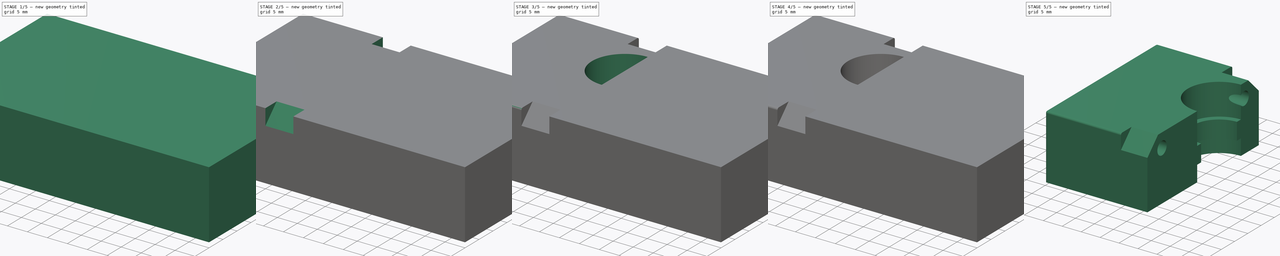
[diagram: build sequence overview — one tinted view per stage of 5, left to right]
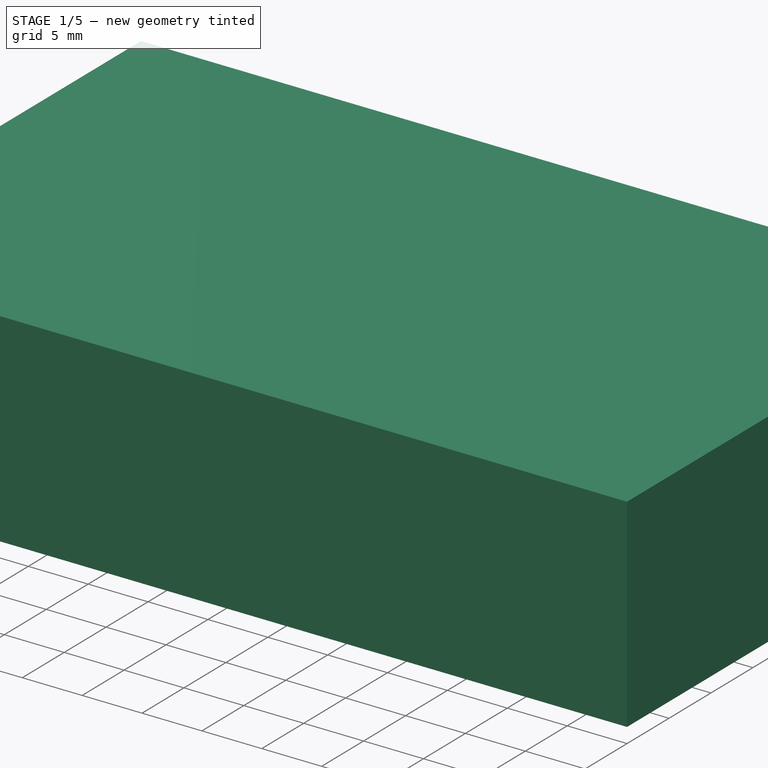
[diagram: stage 1 of 5 — iso view after this stage's code; geometry added in this stage tinted green]
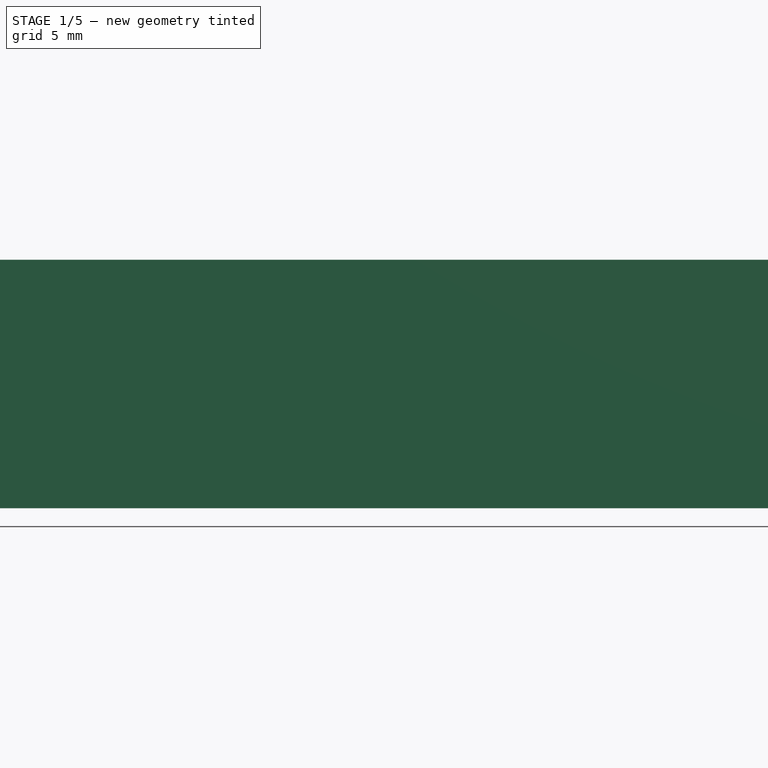
[diagram: stage 1 of 5 — front view after this stage's code; geometry added in this stage tinted green]
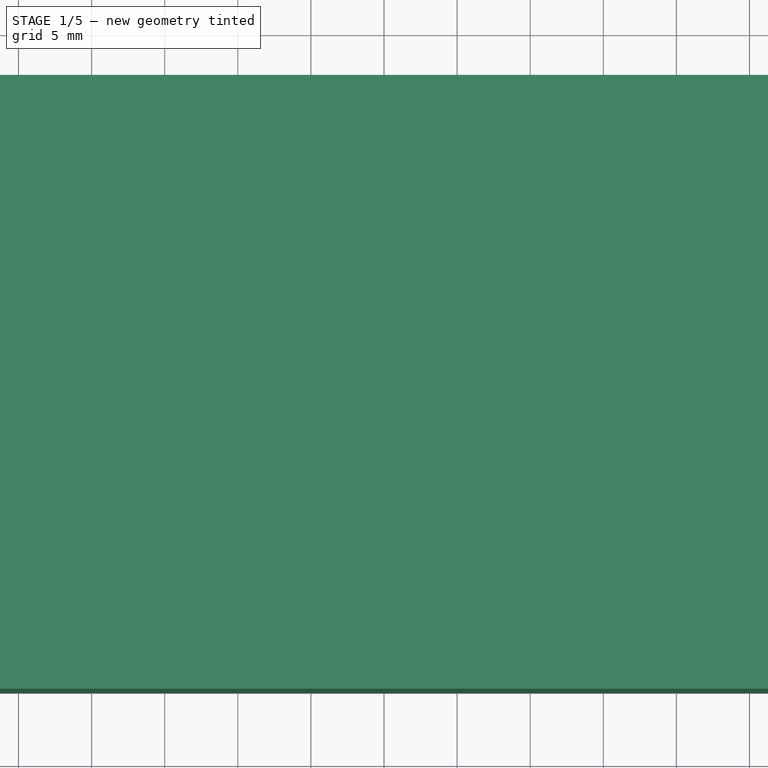
[diagram: stage 1 of 5 — top view after this stage's code; geometry added in this stage tinted green]
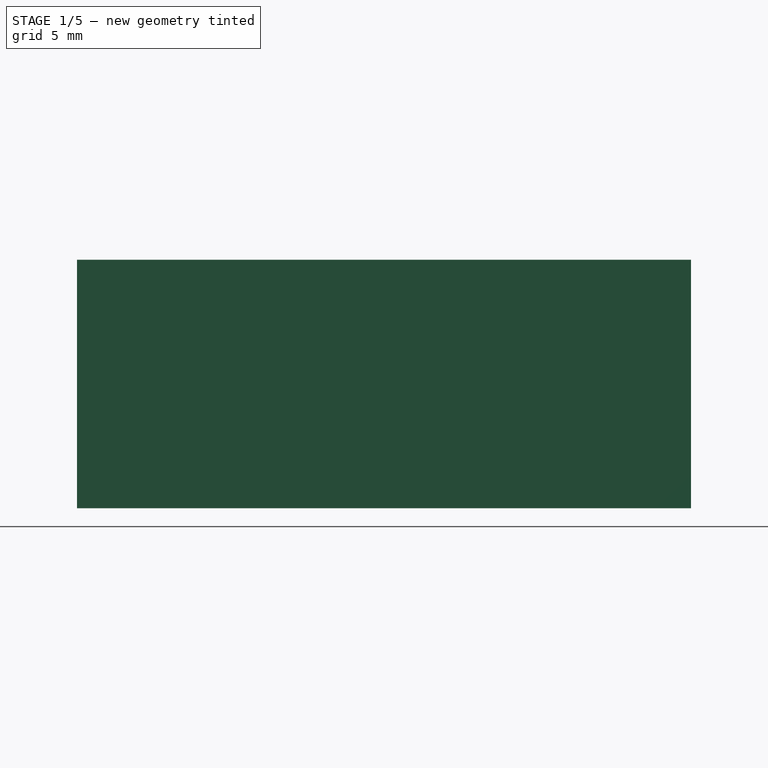
[diagram: stage 1 of 5 — right view after this stage's code; geometry added in this stage tinted green]
FCSTD DOCUMENT  (FreeCAD 0.17R13541 (Git))
Label: E3Dv6forGEEETech_Part01
License: Other
LicenseURL: https://www.gnu.org/licenses/gpl-2.0.html
objects: Part::Feature×15, Sketcher::SketchObject×10, PartDesign::Pocket×9, PartDesign::FeatureBase×3, PartDesign::Body×3, Part::Box×2, Part::MultiFuse×2, Part::Fillet×1, Part::FeaturePython×1, Part::Cut×1
note: 56 computed .brp shape members not serialized (recipe doc carries the construction recipe); baked Part::Feature solids carry a one-line shape summary decoded from their .brp

FEATURE [Part::Box] Box  label="StartingCube"
  AttacherType = Attacher::AttachEngine3D
  Height = 17
  Length = 70
  Width = 42
FEATURE [PartDesign::FeatureBase] BaseFeature
  BaseFeature = -> Box
FEATURE [PartDesign::Body] Body001  label="FilletBody"
  BaseFeature = -> Fillet
  Group = -> [BaseFeature001,Sketch007,Pocket006,Sketch008,Pocket007,Sketch009,Sketch010,Pocket008]
  Origin = -> Origin001
  Tip = -> Pocket008
FEATURE [Part::Box] Box001  label="Part Divider Cube"
  AttacherType = Attacher::AttachEngine3D
  Height = 17
  Length = 43
  Placement = pos=(27,0,0) rot=(0,0,1;0rad)
  Width = 42
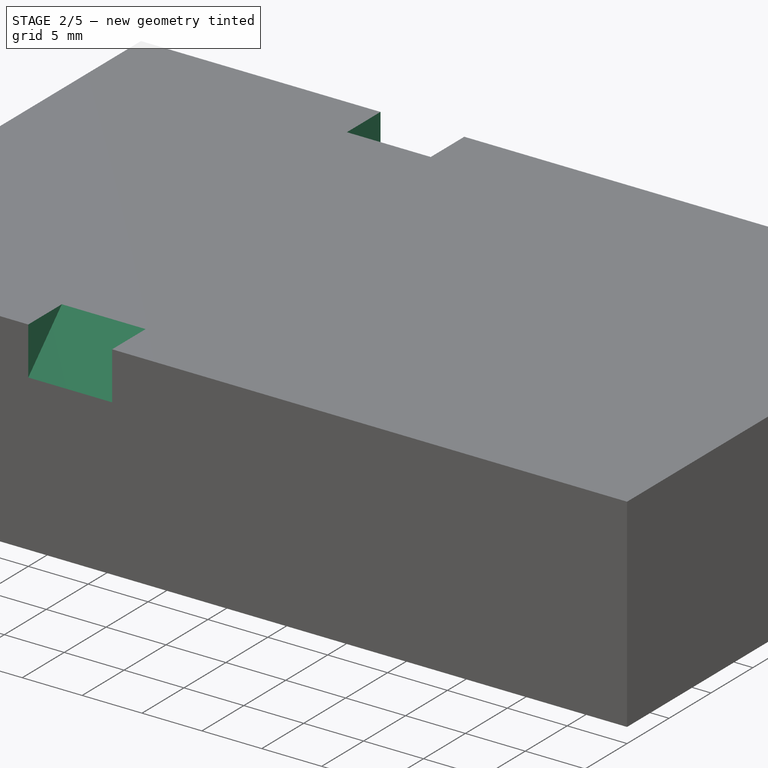
[diagram: stage 2 of 5 — iso view after this stage's code; geometry added in this stage tinted green]
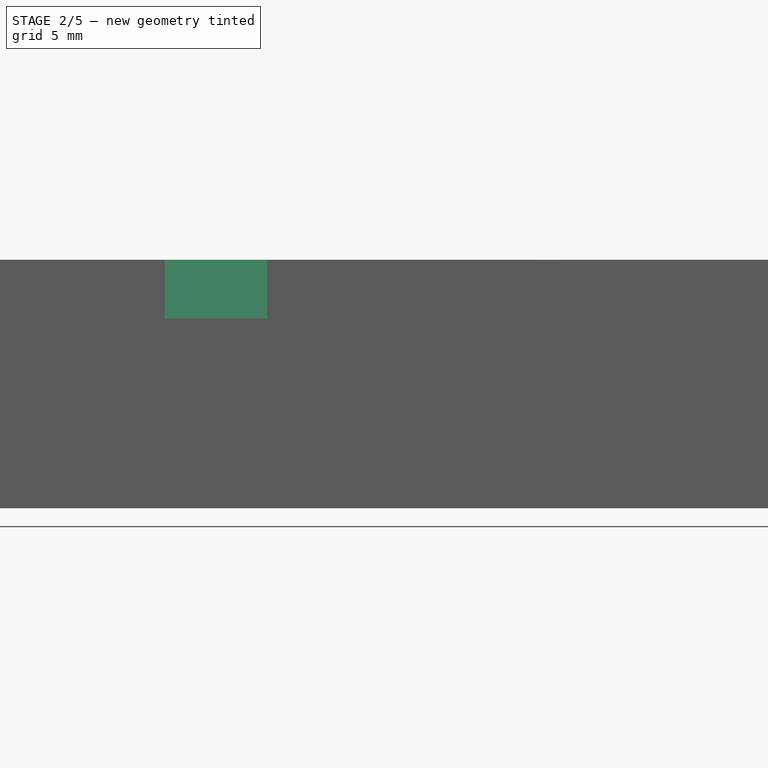
[diagram: stage 2 of 5 — front view after this stage's code; geometry added in this stage tinted green]
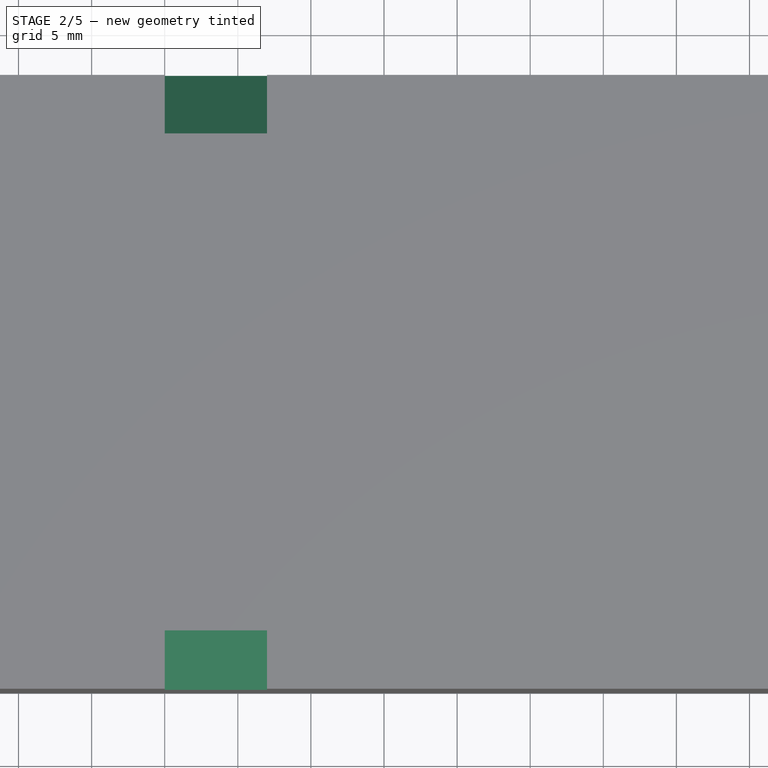
[diagram: stage 2 of 5 — top view after this stage's code; geometry added in this stage tinted green]
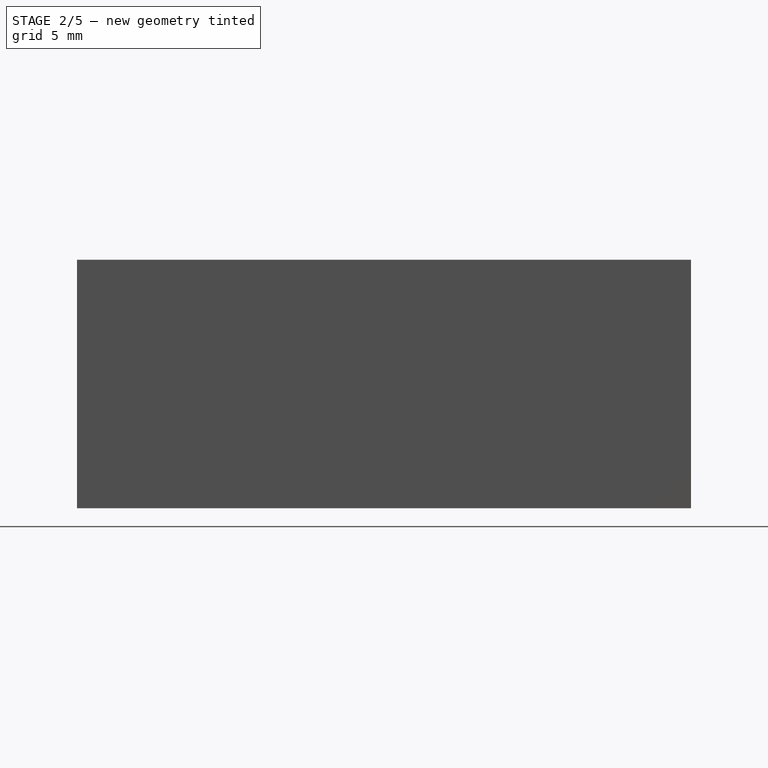
[diagram: stage 2 of 5 — right view after this stage's code; geometry added in this stage tinted green]
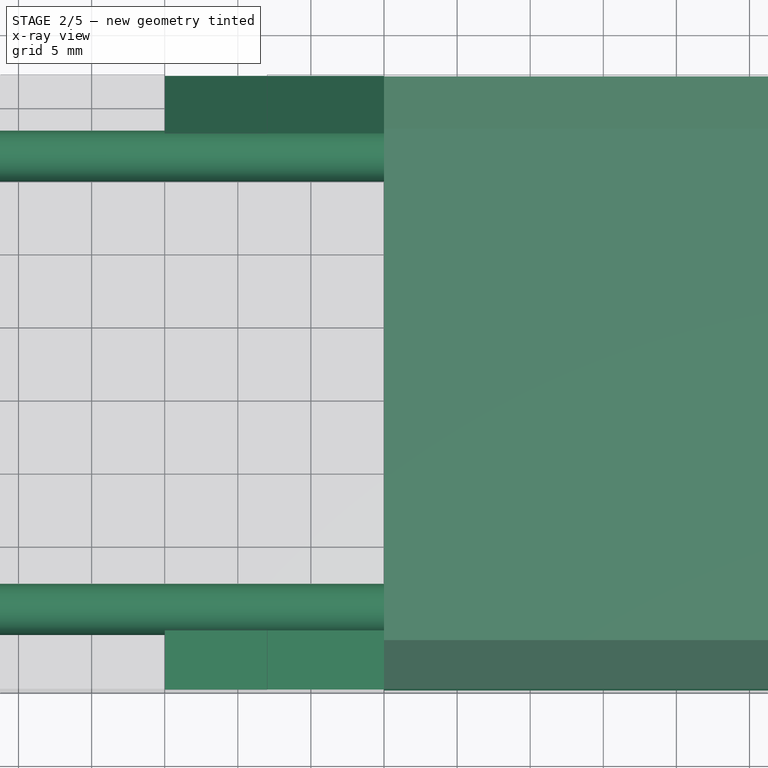
[diagram: stage 2 of 5 — x-ray composite at the top view; earlier geometry ghosted, this stage's added geometry solid]
FEATURE [Sketcher::SketchObject] Sketch  label="Main Screws"
  ExternalGeometry = -> [BaseFeature]
  MapMode = 5
  Placement = pos=(70,0,0) rot=(0.57735,0.57735,0.57735;2.0944rad)
  Support = -> [BaseFeature]
  sketch-geometry (5):
    g0: LineSegment [constr] StartX=5.5 StartY=17 StartZ=0 EndX=5.5 EndY=0 EndZ=0
    g1: LineSegment [constr] StartX=36.5 StartY=17 StartZ=0 EndX=36.5 EndY=0 EndZ=0
    g2: LineSegment [constr] StartX=0 StartY=13.25 StartZ=0 EndX=42 EndY=13.25 EndZ=0
    g3: Circle CenterX=5.5 CenterY=13.25 CenterZ=0 NormalX=0 NormalY=0 NormalZ=1 AngleXU=0 Radius=1.75
    g4: Circle CenterX=36.5 CenterY=13.25 CenterZ=0 NormalX=0 NormalY=0 NormalZ=1 AngleXU=0 Radius=1.75
  constraints (18):
    c: Horizontal(g2)
    c: PointOnObject(g0,g-1)
    c: PointOnObject(g1,g-1)
    c: PointOnObject(g0,g-3)
    c: PointOnObject(g1,g-3)
    c: Vertical(g0)
    c: Vertical(g1)
    c: PointOnObject(g2,g-4)
    c: PointOnObject(g2,g-6)
    c: DistanceY(g-1,g2) = 13.25
    c: DistanceX(g-1,g0) = 5.5
    c: DistanceX(g1,g-6) = 5.5
    c: PointOnObject(g3,g0)
    c: PointOnObject(g3,g2)
    c: PointOnObject(g4,g2)
    c: PointOnObject(g4,g1)
    c: Radius(g3) = 1.75
    c: Radius(g4) = 1.75
FEATURE [Sketcher::SketchObject] Sketch001  label="Motor Corners"
  ExternalGeometry = -> [BaseFeature]
  MapMode = 5
  Placement = pos=(70,0,0) rot=(0.57735,0.57735,0.57735;2.0944rad)
  Support = -> [BaseFeature]
  sketch-geometry (6):
    g0: LineSegment StartX=4 StartY=17 StartZ=0 EndX=0 EndY=17 EndZ=0
    g1: LineSegment StartX=0 StartY=17 StartZ=0 EndX=0 EndY=13 EndZ=0
    g2: LineSegment StartX=0 StartY=13 StartZ=0 EndX=4 EndY=17 EndZ=0
    g3: LineSegment StartX=38 StartY=17 StartZ=0 EndX=42 EndY=17 EndZ=0
    g4: LineSegment StartX=42 StartY=17 StartZ=0 EndX=42 EndY=13 EndZ=0
    g5: LineSegment StartX=42 StartY=13 StartZ=0 EndX=38 EndY=17 EndZ=0
  constraints (16):
    c: Coincident(g0,g1)
    c: Coincident(g1,g2)
    c: Coincident(g2,g0)
    c: Coincident(g3,g4)
    c: Coincident(g4,g5)
    c: Coincident(g5,g3)
    c: Coincident(g0,g-6)
    c: Coincident(g3,g-6)
    c: PointOnObject(g1,g-3)
    c: PointOnObject(g0,g-6)
    c: PointOnObject(g3,g-6)
    c: PointOnObject(g4,g-5)
    c: DistanceY(g1,g1) = 4
    c: DistanceX(g0,g0) = 4
    c: Equal(g1,g4)
    c: Equal(g0,g3)
FEATURE [PartDesign::Pocket] Pocket  label="MainScrewsPocket"
  BaseFeature = -> BaseFeature
  Length = 5
  Length2 = 100
  Profile = -> Sketch
  Type = 1
FEATURE [PartDesign::Pocket] Pocket001  label="MotorCornersPocket"
  BaseFeature = -> Pocket
  Length = 50
  Length2 = 100
  Profile = -> Sketch001
  Type = 0
FEATURE [Sketcher::SketchObject] Sketch002  label="Motor Hole"
  ExternalGeometry = -> [Pocket001]
  MapMode = 5
  Placement = pos=(70,0,0) rot=(0.57735,0.57735,0.57735;2.0944rad)
  Support = -> [Pocket001]
  sketch-geometry (10):
    g0: LineSegment StartX=4 StartY=17 StartZ=0 EndX=0 EndY=13 EndZ=0
    g1: LineSegment StartX=0 StartY=13 StartZ=0 EndX=0 EndY=10.5 EndZ=0
    g2: LineSegment StartX=0 StartY=10.5 StartZ=0 EndX=3.5 EndY=7 EndZ=0
    g3: LineSegment StartX=3.5 StartY=7 StartZ=0 EndX=38.5 EndY=7 EndZ=0
    g4: LineSegment StartX=38.5 StartY=7 StartZ=0 EndX=42 EndY=10.5 EndZ=0
    g5: LineSegment StartX=42 StartY=10.5 StartZ=0 EndX=42 EndY=13 EndZ=0
    g6: LineSegment StartX=42 StartY=13 StartZ=0 EndX=38 EndY=17 EndZ=0
    g7: LineSegment StartX=38 StartY=17 StartZ=0 EndX=4 EndY=17 EndZ=0
    g8: LineSegment [constr] StartX=0 StartY=7 StartZ=0 EndX=3.5 EndY=7 EndZ=0
    g9: LineSegment [constr] StartX=38.5 StartY=7 StartZ=0 EndX=42 EndY=7 EndZ=0
  constraints (25):
    c: Coincident(g0,g1)
    c: Coincident(g1,g2)
    c: Coincident(g2,g3)
    c: Horizontal(g3)
    c: Coincident(g3,g4)
    c: Coincident(g4,g5)
    c: Coincident(g5,g6)
    c: Coincident(g6,g7)
    c: Horizontal(g7)
    c: Coincident(g0,g-5)
    c: Coincident(g6,g-7)
    c: Coincident(g5,g-7)
    c: PointOnObject(g4,g-6)
    c: PointOnObject(g1,g-5)
    c: PointOnObject(g8,g-5)
    c: Horizontal(g8)
    c: DistanceX(g8,g8) = 3.5
    c: DistanceY(g8,g1) = 3.5
    c: Coincident(g2,g8)
    c: Horizontal(g9)
    c: PointOnObject(g9,g-6)
    c: Coincident(g3,g9)
    c: DistanceX(g9,g9) = 3.5
    c: DistanceY(g9,g4) = 3.5
    c: DistanceY(g2,g0) = 10
FEATURE [PartDesign::Pocket] Pocket002  label="MotorPocket"
  BaseFeature = -> Pocket001
  Length = 35
  Length2 = 100
  Profile = -> Sketch002
  Type = 0
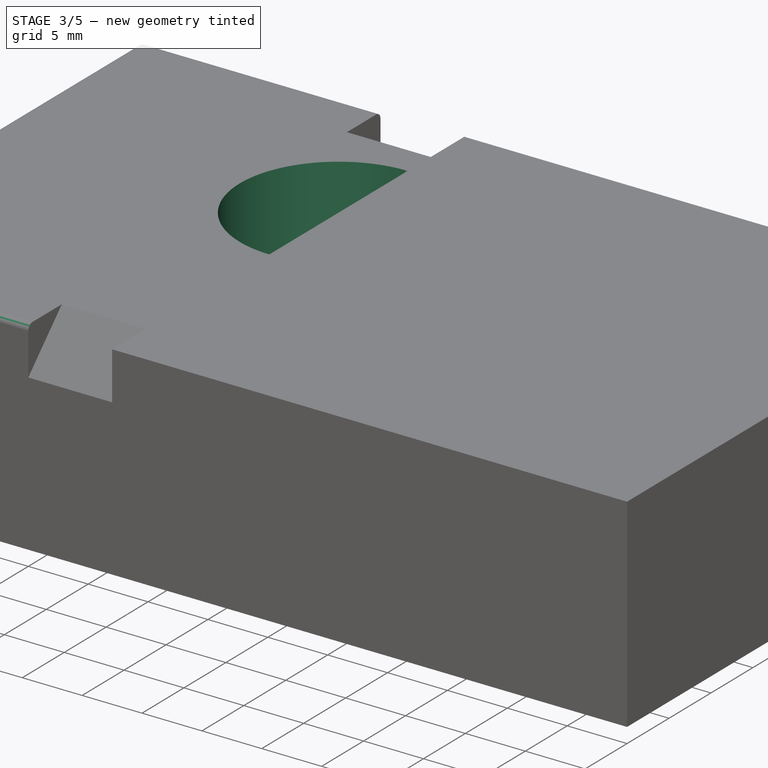
[diagram: stage 3 of 5 — iso view after this stage's code; geometry added in this stage tinted green]
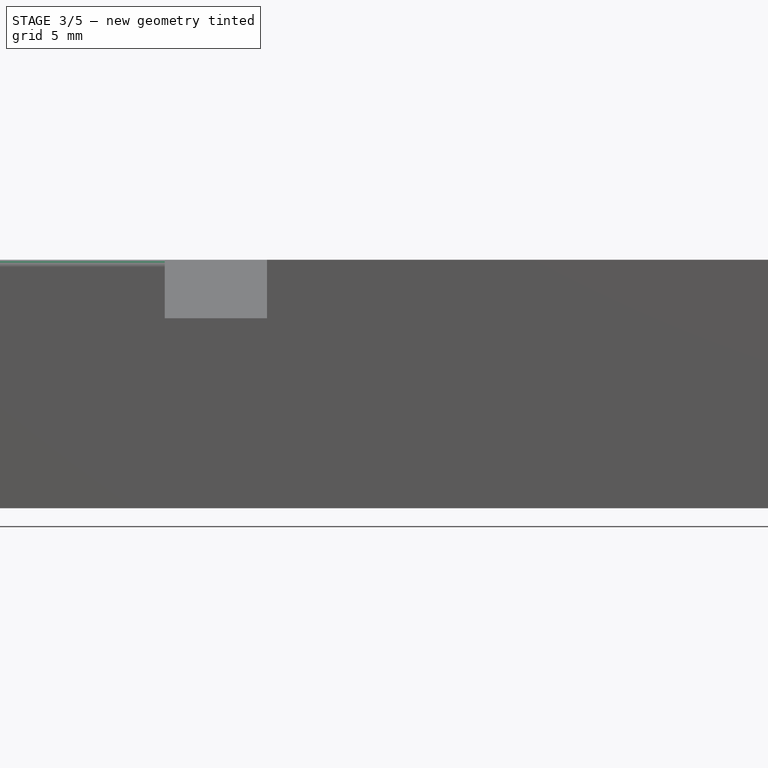
[diagram: stage 3 of 5 — front view after this stage's code; geometry added in this stage tinted green]
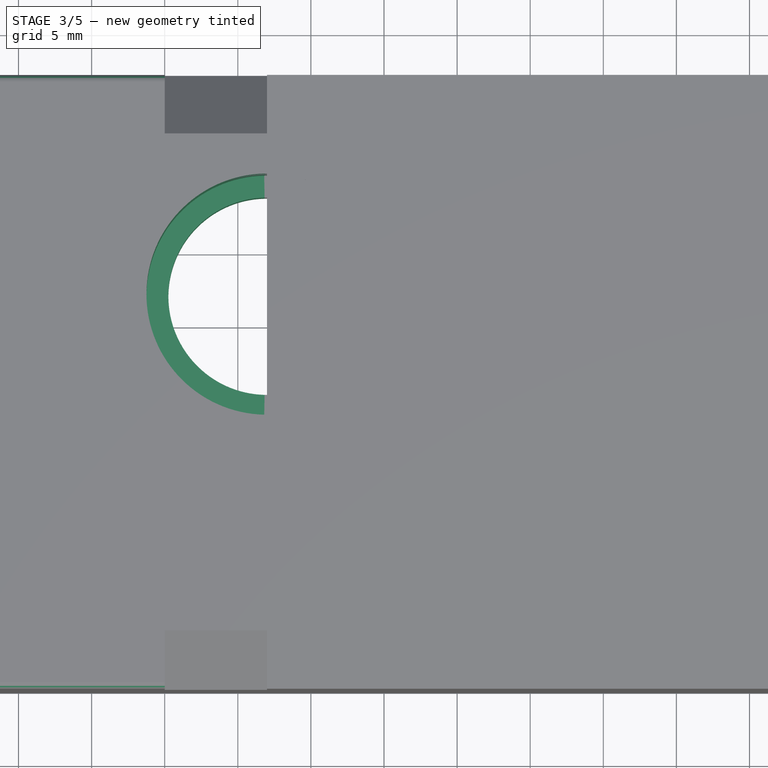
[diagram: stage 3 of 5 — top view after this stage's code; geometry added in this stage tinted green]
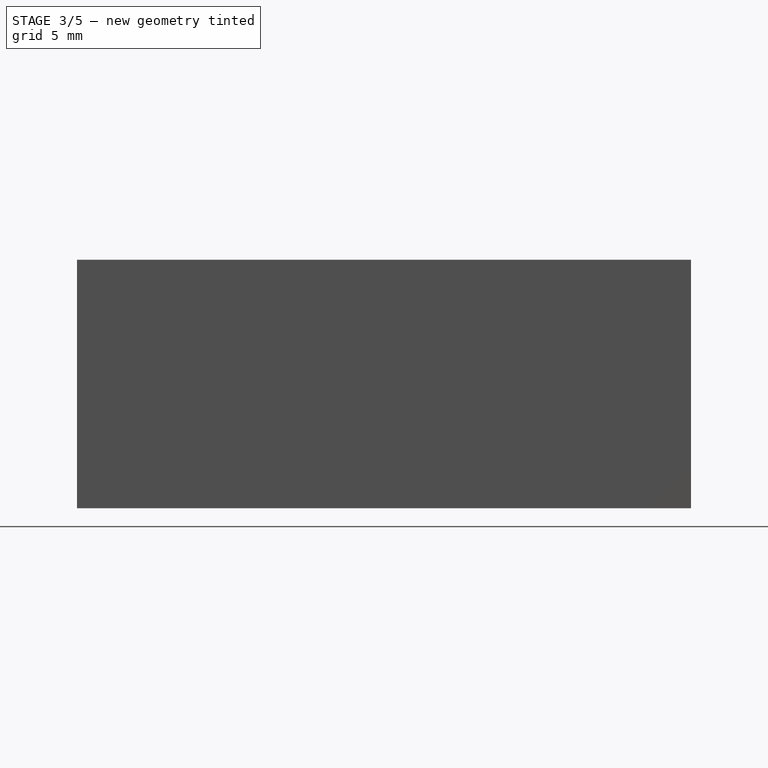
[diagram: stage 3 of 5 — right view after this stage's code; geometry added in this stage tinted green]
FEATURE [Sketcher::SketchObject] Sketch003  label="Center Hotend Hole"
  ExternalGeometry = -> [Pocket002]
  MapMode = 5
  Placement = pos=(0,0,17) rot=(0,0,1;0rad)
  Support = -> [Pocket002]
  sketch-geometry (3):
    g0: LineSegment [constr] StartX=27 StartY=42 StartZ=0 EndX=27 EndY=0 EndZ=0
    g1: LineSegment [constr] StartX=0 StartY=27 StartZ=0 EndX=35 EndY=27 EndZ=0
    g2: Circle CenterX=27 CenterY=27 CenterZ=0 NormalX=0 NormalY=0 NormalZ=1 AngleXU=0 Radius=6.75
  constraints (11):
    c: PointOnObject(g0,g-3)
    c: PointOnObject(g0,g-6)
    c: Vertical(g0)
    c: DistanceX(g-4,g0) = 27
    c: PointOnObject(g1,g-4)
    c: PointOnObject(g1,g-5)
    c: Horizontal(g1)
    c: DistanceY(g1,g-4) = 15
    c: PointOnObject(g2,g0)
    c: PointOnObject(g2,g1)
    c: Radius(g2) = 6.75
FEATURE [PartDesign::Pocket] Pocket003  label="CenterHotendHolePocket"
  BaseFeature = -> Pocket002
  Length = 5
  Length2 = 100
  Profile = -> Sketch003
  Type = 1
FEATURE [Sketcher::SketchObject] Sketch004  label="Top Hotend Hole"
  ExternalGeometry = -> [Pocket003]
  MapMode = 5
  Placement = pos=(0,0,17) rot=(0,0,1;0rad)
  Support = -> [Pocket003]
  sketch-geometry (3):
    g0: LineSegment [constr] StartX=27 StartY=42 StartZ=0 EndX=27 EndY=0 EndZ=0
    g1: LineSegment [constr] StartX=0 StartY=27 StartZ=0 EndX=35 EndY=27 EndZ=0
    g2: Circle CenterX=27 CenterY=27 CenterZ=0 NormalX=0 NormalY=0 NormalZ=1 AngleXU=0 Radius=8.25
  constraints (11):
    c: PointOnObject(g0,g-6)
    c: PointOnObject(g0,g-5)
    c: Vertical(g0)
    c: PointOnObject(g1,g-3)
    c: PointOnObject(g1,g-4)
    c: Horizontal(g1)
    c: DistanceX(g-6,g0) = 27
    c: DistanceY(g1,g-6) = 15
    c: PointOnObject(g2,g1)
    c: PointOnObject(g2,g0)
    c: Radius(g2) = 8.25
FEATURE [PartDesign::Pocket] Pocket004  label="TopHotendHolePocket"
  BaseFeature = -> Pocket003
  Length = 8.3
  Length2 = 100
  Profile = -> Sketch004
  Type = 0
FEATURE [Sketcher::SketchObject] Sketch005  label="Bottom Hotend Hole"
  ExternalGeometry = -> [Pocket004]
  MapMode = 5
  Placement = pos=(0,0,0) rot=(1,0,0;3.14159rad)
  Support = -> [Pocket004]
  sketch-geometry (3):
    g0: LineSegment [constr] StartX=27 StartY=-42 StartZ=0 EndX=27 EndY=0 EndZ=0
    g1: LineSegment [constr] StartX=55 StartY=-27 StartZ=0 EndX=0 EndY=-27 EndZ=0
    g2: Circle CenterX=27 CenterY=-27 CenterZ=0 NormalX=0 NormalY=0 NormalZ=1 AngleXU=0 Radius=8.25
  constraints (11):
    c: PointOnObject(g1,g-4)
    c: Horizontal(g1)
    c: Vertical(g0)
    c: DistanceX(g-4,g0) = 27
    c: DistanceY(g-4,g1) = 15
    c: PointOnObject(g2,g0)
    c: PointOnObject(g2,g1)
    c: Radius(g2) = 8.25
    c: PointOnObject(g0,g-3)
    c: PointOnObject(g1,g-5)
    c: PointOnObject(g0,g-6)
FEATURE [PartDesign::Pocket] Pocket005  label="BottomHotendHolePocket"
  BaseFeature = -> Pocket004
  Length = 4.2
  Length2 = 100
  Profile = -> Sketch005
  Type = 0
FEATURE [PartDesign::Body] Body  label="StartingBody"
  BaseFeature = -> Box
  Group = -> [BaseFeature,Sketch,Sketch001,Pocket,Pocket001,Sketch002,Pocket002,Sketch003,Pocket003,Sketch004,Pocket004,Sketch005,Pocket005]
  Origin = -> Origin
  Tip = -> Pocket005
FEATURE [Part::Fillet] Fillet  label="EdgeFillet"
  Base = -> Pocket005
  Edges = 5 edges r=0.5: [Edge1,Edge2,Edge4,Edge12,Edge14]
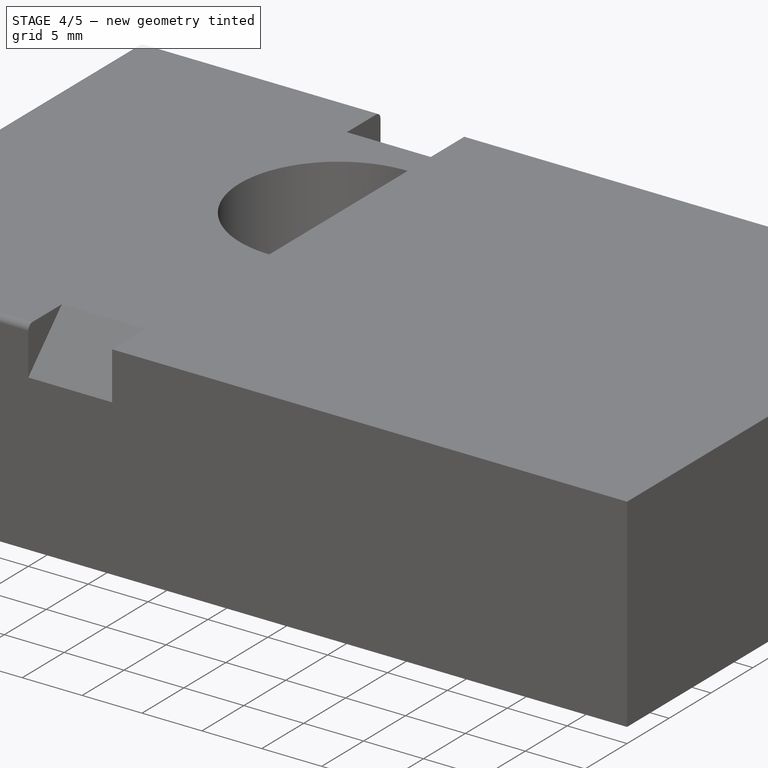
[diagram: stage 4 of 5 — iso view after this stage's code; geometry added in this stage tinted green]
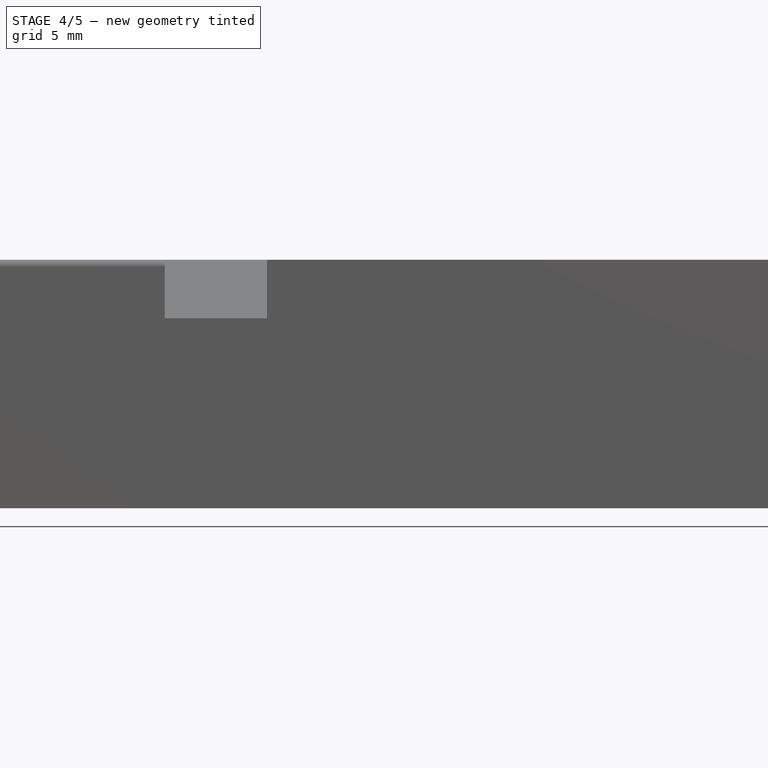
[diagram: stage 4 of 5 — front view after this stage's code; geometry added in this stage tinted green]
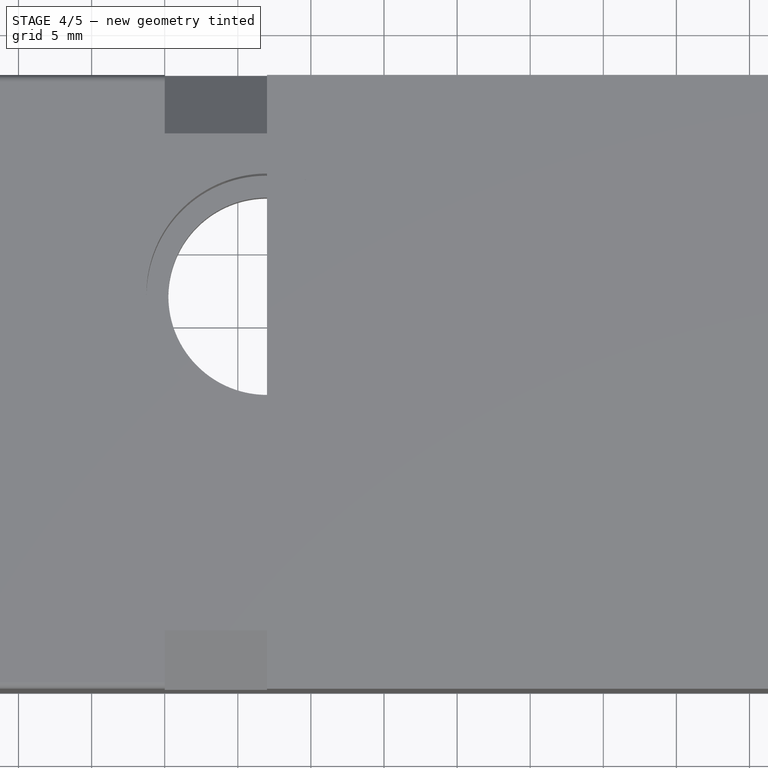
[diagram: stage 4 of 5 — top view after this stage's code; geometry added in this stage tinted green]
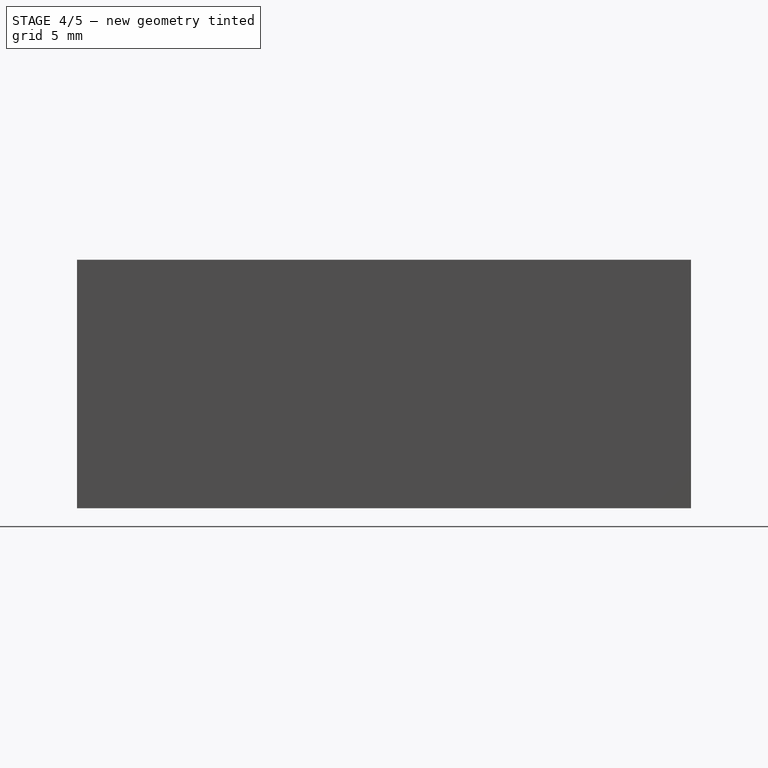
[diagram: stage 4 of 5 — right view after this stage's code; geometry added in this stage tinted green]
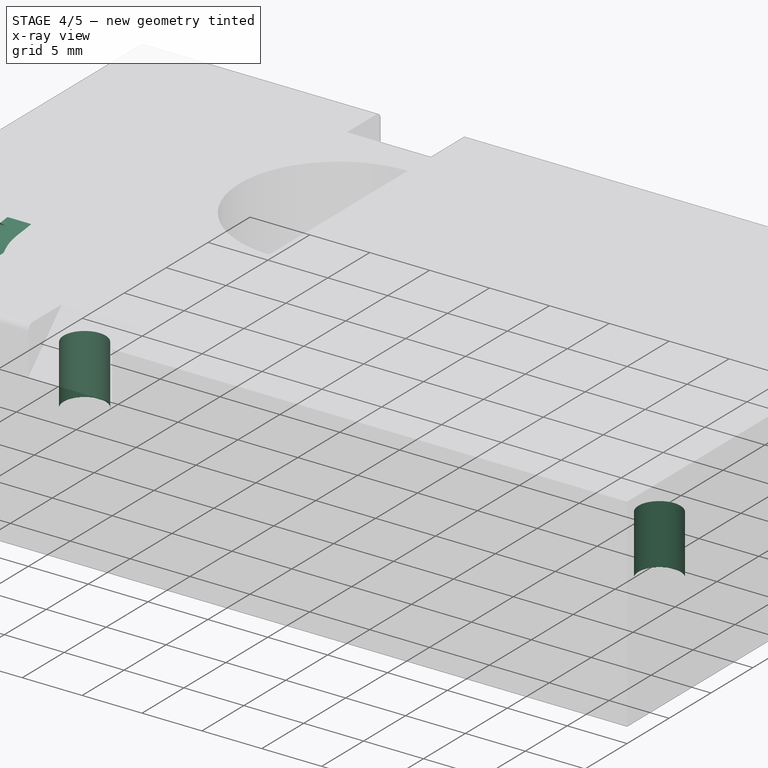
[diagram: stage 4 of 5 — x-ray composite at the iso view; earlier geometry ghosted, this stage's added geometry solid]
FEATURE [PartDesign::FeatureBase] BaseFeature001
  BaseFeature = -> Fillet
FEATURE [Sketcher::SketchObject] Sketch007  label="Mounting Screws Holes"
  ExternalGeometry = -> [BaseFeature001]
  MapMode = 5
  Placement = pos=(0,0,0) rot=(1,0,0;3.14159rad)
  Support = -> [BaseFeature001]
  sketch-geometry (4):
    g0: Circle CenterX=10 CenterY=-21 CenterZ=0 NormalX=0 NormalY=0 NormalZ=1 AngleXU=0 Radius=1.75
    g1: Circle CenterX=58 CenterY=-21 CenterZ=0 NormalX=0 NormalY=0 NormalZ=1 AngleXU=0 Radius=1.75
    g2: GeomPoint X=0 Y=-21 Z=0
    g3: GeomPoint X=70 Y=-21 Z=0
  constraints (10):
    c: PointOnObject(g2,g-3)
    c: PointOnObject(g3,g-4)
    c: Symmetric(g-3,g-3,g2)
    c: Symmetric(g-6,g-5,g3)
    c: DistanceX(g2,g0) = 10
    c: Horizontal(g0,g2)
    c: DistanceX(g1,g3) = 12
    c: Horizontal(g1,g3)
    c: Radius(g0) = 1.75
    c: Radius(g1) = 1.75
FEATURE [PartDesign::Pocket] Pocket006  label="MountingScrewsPocket"
  BaseFeature = -> BaseFeature001
  Length = 5
  Length2 = 100
  Profile = -> Sketch007
  Type = 0
FEATURE [Part::Feature] path4547
  shape: bbox 3.498 x 2.57 x 2.133e-07 mm, 1 faces, 0 solids (baked)
FEATURE [Part::Feature] path4507
  shape: bbox 3.498 x 2.57 x 2.133e-07 mm, 1 faces, 0 solids (baked)
FEATURE [Part::Feature] path5215
  shape: bbox 3.575 x 6.158 x 2.133e-07 mm, 1 faces, 0 solids (baked)
FEATURE [Part::Feature] path5215001
  shape: bbox 8.492 x 6.158 x 2.133e-07 mm, 1 faces, 0 solids (baked)
FEATURE [Part::Feature] path5215002
  shape: bbox 15.48 x 6.158 x 2.133e-07 mm, 1 faces, 0 solids (baked)
FEATURE [Part::Feature] path5215003
  shape: bbox 67.73 x 6.158 x 2.133e-07 mm, 1 faces, 0 solids (baked)
FEATURE [Part::Feature] path5215004
  shape: bbox 29.31 x 6.158 x 2.133e-07 mm, 1 faces, 0 solids (baked)
FEATURE [Part::Feature] path5215005
  shape: bbox 4.886 x 6.158 x 2.133e-07 mm, 1 faces, 0 solids (baked)
FEATURE [Sketcher::SketchObject] Sketch008  label="Logo Sketch"
  AttachmentOffset = pos=(0,0,0) rot=(0,0,1;1.5708rad)
  ExternalGeometry = -> [Pocket006]
  MapMode = 5
  Placement = pos=(0,0,0) rot=(0,-1,0;1.5708rad)
  Support = -> [Pocket006]
  sketch-geometry (35):
    g0: BSplineCurve PolesCount=4 KnotsCount=2 Degree=3 IsPeriodic=0
    g1: BSplineCurve PolesCount=4 KnotsCount=2 Degree=3 IsPeriodic=0
    g2: BSplineCurve PolesCount=2 KnotsCount=2 Degree=1 IsPeriodic=0
    g3: BSplineCurve PolesCount=4 KnotsCount=2 Degree=3 IsPeriodic=0
    g4: BSplineCurve PolesCount=4 KnotsCount=2 Degree=3 IsPeriodic=0
    g5: BSplineCurve PolesCount=2 KnotsCount=2 Degree=1 IsPeriodic=0
    g6: BSplineCurve PolesCount=4 KnotsCount=2 Degree=3 IsPeriodic=0
    g7: BSplineCurve PolesCount=2 KnotsCount=2 Degree=1 IsPeriodic=0
    g8: BSplineCurve PolesCount=4 KnotsCount=2 Degree=3 IsPeriodic=0
    g9: BSplineCurve PolesCount=2 KnotsCount=2 Degree=1 IsPeriodic=0
    g10: BSplineCurve PolesCount=4 KnotsCount=2 Degree=3 IsPeriodic=0
    g11: BSplineCurve PolesCount=2 KnotsCount=2 Degree=1 IsPeriodic=0
    g12: BSplineCurve PolesCount=4 KnotsCount=2 Degree=3 IsPeriodic=0
    g13: BSplineCurve PolesCount=2 KnotsCount=2 Degree=1 IsPeriodic=0
    g14: BSplineCurve PolesCount=4 KnotsCount=2 Degree=3 IsPeriodic=0
    g15: BSplineCurve PolesCount=4 KnotsCount=2 Degree=3 IsPeriodic=0
    g16: BSplineCurve PolesCount=4 KnotsCount=2 Degree=3 IsPeriodic=0
    g17: BSplineCurve PolesCount=2 KnotsCount=2 Degree=1 IsPeriodic=0
    g18: BSplineCurve PolesCount=4 KnotsCount=2 Degree=3 IsPeriodic=0
    g19: BSplineCurve PolesCount=4 KnotsCount=2 Degree=3 IsPeriodic=0
    g20: BSplineCurve PolesCount=4 KnotsCount=2 Degree=3 IsPeriodic=0
    g21: BSplineCurve PolesCount=2 KnotsCount=2 Degree=1 IsPeriodic=0
    g22: BSplineCurve PolesCount=4 KnotsCount=2 Degree=3 IsPeriodic=0
    g23: BSplineCurve PolesCount=4 KnotsCount=2 Degree=3 IsPeriodic=0
    g24: BSplineCurve PolesCount=2 KnotsCount=2 Degree=1 IsPeriodic=0
    g25: BSplineCurve PolesCount=4 KnotsCount=2 Degree=3 IsPeriodic=0
    g26: BSplineCurve PolesCount=4 KnotsCount=2 Degree=3 IsPeriodic=0
    g27: BSplineCurve PolesCount=2 KnotsCount=2 Degree=1 IsPeriodic=0
    g28: BSplineCurve PolesCount=4 KnotsCount=2 Degree=3 IsPeriodic=0
    g29: BSplineCurve PolesCount=4 KnotsCount=2 Degree=3 IsPeriodic=0
    g30: BSplineCurve PolesCount=4 KnotsCount=2 Degree=3 IsPeriodic=0
    g31: BSplineCurve PolesCount=4 KnotsCount=2 Degree=3 IsPeriodic=0
    g32: BSplineCurve PolesCount=2 KnotsCount=2 Degree=1 IsPeriodic=0
    g33: GeomPoint X=0 Y=21 Z=0
    g34: GeomPoint X=16.5 Y=21 Z=0
  constraints (37):
    c: Coincident(g0,g1)
    c: Coincident(g1,g2)
    c: Coincident(g2,g3)
    c: Coincident(g3,g4)
    c: Coincident(g4,g5)
    c: Coincident(g5,g0)
    c: Coincident(g6,g7)
    c: Coincident(g7,g8)
    c: Coincident(g8,g9)
    c: Coincident(g9,g6)
    c: Coincident(g10,g11)
    c: Coincident(g11,g12)
    c: Coincident(g12,g13)
    c: Coincident(g13,g10)
    c: Coincident(g14,g15)
    c: Coincident(g15,g16)
    c: Coincident(g16,g17)
    c: Coincident(g17,g18)
    c: Coincident(g18,g19)
    c: Coincident(g19,g20)
    c: Coincident(g20,g21)
    c: Coincident(g21,g14)
    c: Coincident(g22,g23)
    c: Coincident(g23,g24)
    c: Coincident(g24,g25)
    c: Coincident(g25,g26)
    c: Coincident(g26,g27)
    c: Coincident(g27,g22)
    c: Coincident(g28,g29)
    c: Coincident(g29,g30)
    c: Coincident(g30,g31)
    c: Coincident(g31,g32)
    c: Coincident(g32,g28)
    c: PointOnObject(g34,g-5)
    c: PointOnObject(g33,g-6)
    c: Symmetric(g-5,g-5,g34)
    c: Symmetric(g-6,g-6,g33)
FEATURE [Part::MultiFuse] Fusion  label="Logo Fusion"
  Shapes = -> [path4547,path4507,path5215,path5215001,path5215002,path5215003,path5215004,path5215005]
FEATURE [Part::FeaturePython] Scale  label="Logo Scale"  # Draft clone (typed FeaturePython)
  Fuse = false
  Objects = -> [Fusion]
  Placement = pos=(-0.0272269,26.2847,13.7108) rot=(0.57735,-0.57735,-0.57735;2.0944rad)
  Scale = (0.15,0.15,0.15)
FEATURE [PartDesign::Pocket] Pocket007  label="LogoPocket"
  BaseFeature = -> Pocket006
  Length = 2
  Length2 = 100
  Profile = -> Sketch008
  Type = 0
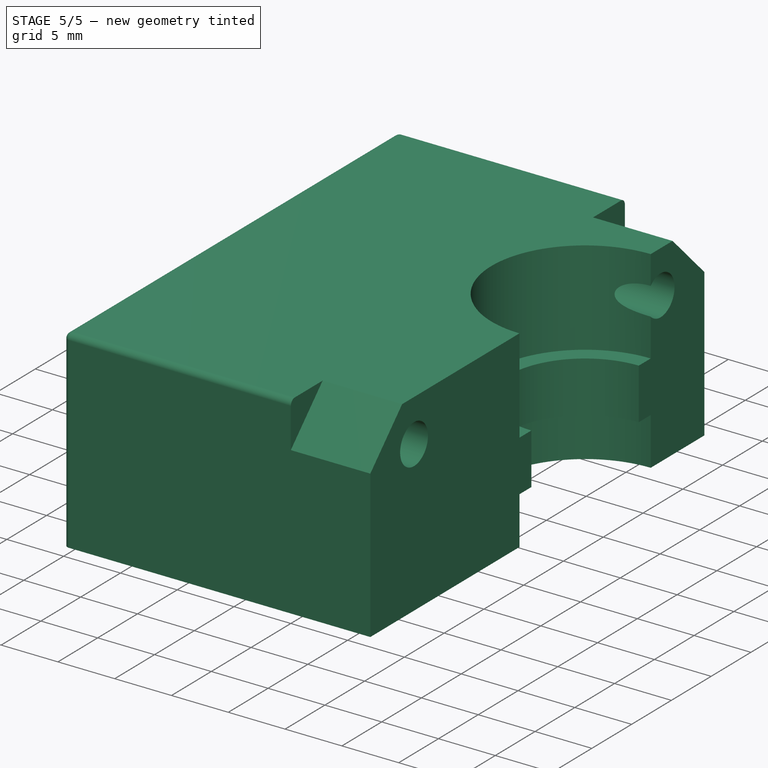
[diagram: stage 5 of 5 — iso view after this stage's code; geometry added in this stage tinted green]
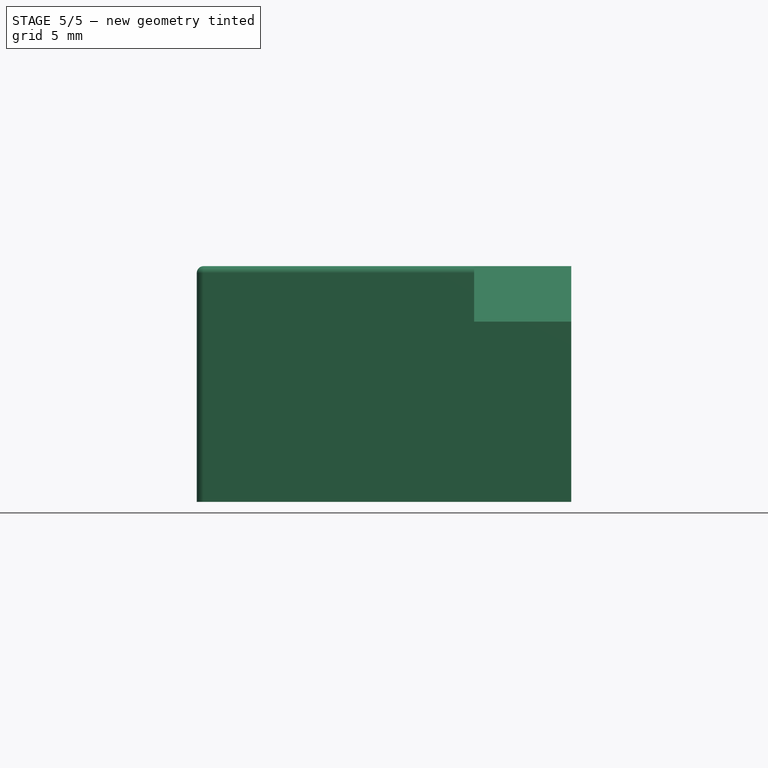
[diagram: stage 5 of 5 — front view after this stage's code; geometry added in this stage tinted green]
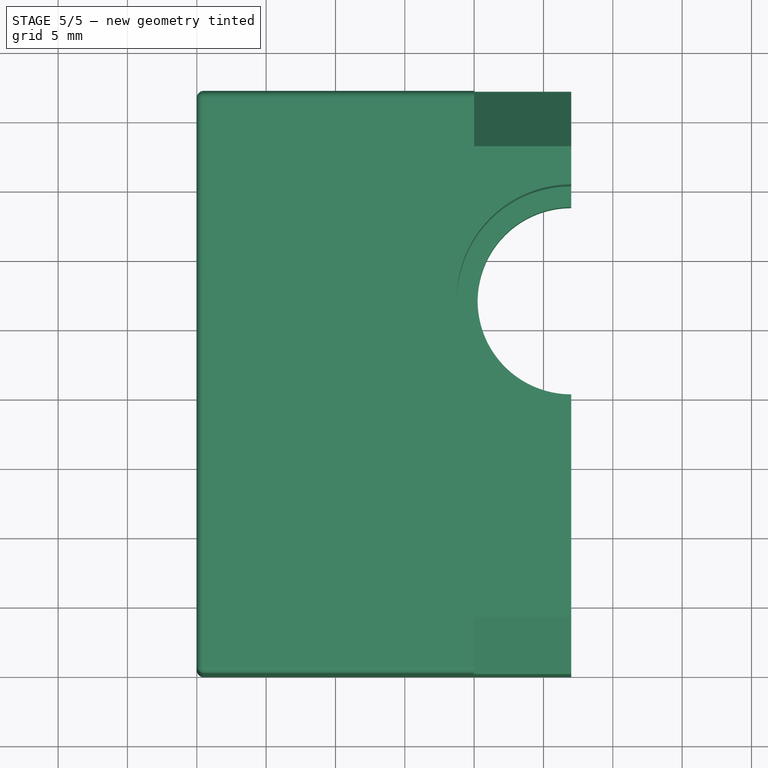
[diagram: stage 5 of 5 — top view after this stage's code; geometry added in this stage tinted green]
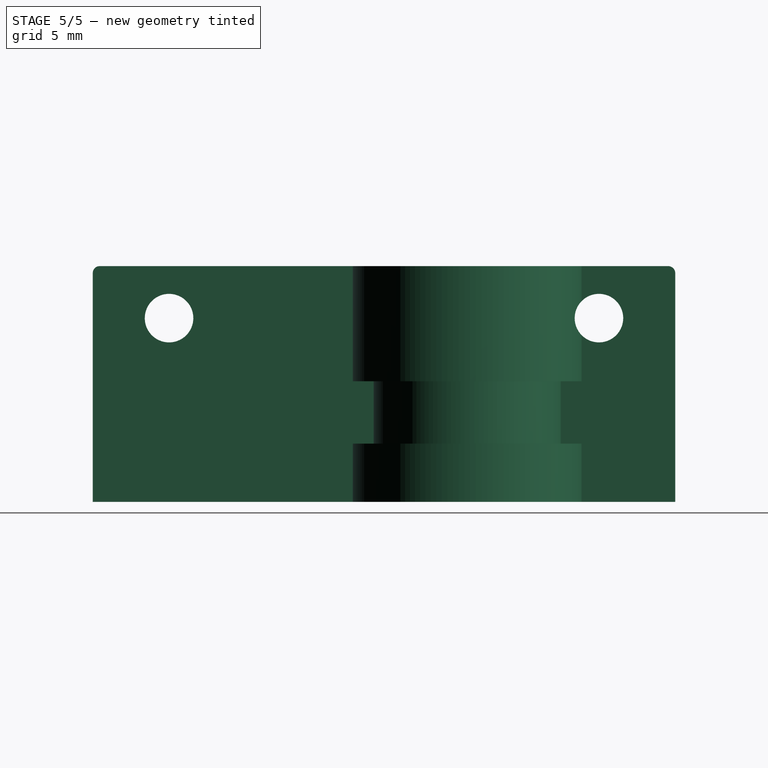
[diagram: stage 5 of 5 — right view after this stage's code; geometry added in this stage tinted green]
FEATURE [Sketcher::SketchObject] Sketch009  label="Serial Number Position"
  ExternalGeometry = -> [Pocket007]
  MapMode = 5
  Placement = pos=(0,0,7) rot=(0,0,1;0rad)
  Support = -> [Pocket007]
  sketch-geometry (2):
    g0: LineSegment StartX=67.5 StartY=36 StartZ=0 EndX=62.5 EndY=36 EndZ=0
    g1: LineSegment StartX=67.5 StartY=36 StartZ=0 EndX=67.5 EndY=16 EndZ=0
  constraints (7):
    c: Coincident(g1,g0)
    c: Vertical(g1)
    c: Horizontal(g0)
    c: DistanceY(g0,g-5) = 2.5
    c: DistanceX(g0,g-5) = 2.5
    c: DistanceY(g1,g1) = 20
    c: DistanceX(g0,g0) = 5
FEATURE [Part::Feature] path111
  shape: bbox 1.422 x 3.473 x 2e-07 mm, 0 faces, 0 solids (baked)
FEATURE [Part::Feature] path111001
  shape: bbox 3.248 x 5.093 x 2e-07 mm, 0 faces, 0 solids (baked)
FEATURE [Part::Feature] path111002
  shape: bbox 1.396 x 3.44 x 2e-07 mm, 0 faces, 0 solids (baked)
FEATURE [Part::Feature] path113
  shape: bbox 2.774 x 4.935 x 2e-07 mm, 0 faces, 0 solids (baked)
FEATURE [Part::Feature] path115
  shape: bbox 2.433 x 0.5108 x 2e-07 mm, 0 faces, 0 solids (baked)
FEATURE [Part::Feature] path117
  shape: bbox 3.52 x 4.932 x 2e-07 mm, 0 faces, 0 solids (baked)
FEATURE [Part::Feature] path117001
  shape: bbox 1.073 x 2.242 x 2e-07 mm, 0 faces, 0 solids (baked)
FEATURE [Part::MultiFuse] Fusion002  label="Serial Number Fusion"
  Placement = pos=(50.9231,13.3138,7) rot=(0,0,1;1.5708rad)
  Shapes = -> [path111,path111001,path111002,path113,path115,path117,path117001]
FEATURE [Sketcher::SketchObject] Sketch010  label="Serial Number Sketch"
  MapMode = 5
  Placement = pos=(0,0,7) rot=(0,0,1;0rad)
  Support = -> [Pocket007]
  sketch-geometry (65):
    g0: BSplineCurve PolesCount=3 KnotsCount=2 Degree=2 IsPeriodic=0
    g1: BSplineCurve PolesCount=3 KnotsCount=2 Degree=2 IsPeriodic=0
    g2: BSplineCurve PolesCount=3 KnotsCount=2 Degree=2 IsPeriodic=0
    g3: BSplineCurve PolesCount=3 KnotsCount=2 Degree=2 IsPeriodic=0
    g4: BSplineCurve PolesCount=2 KnotsCount=2 Degree=1 IsPeriodic=0
    g5: BSplineCurve PolesCount=3 KnotsCount=2 Degree=2 IsPeriodic=0
    g6: BSplineCurve PolesCount=3 KnotsCount=2 Degree=2 IsPeriodic=0
    g7: BSplineCurve PolesCount=3 KnotsCount=2 Degree=2 IsPeriodic=0
    g8: BSplineCurve PolesCount=3 KnotsCount=2 Degree=2 IsPeriodic=0
    g9: BSplineCurve PolesCount=3 KnotsCount=2 Degree=2 IsPeriodic=0
    g10: BSplineCurve PolesCount=3 KnotsCount=2 Degree=2 IsPeriodic=0
    g11: BSplineCurve PolesCount=3 KnotsCount=2 Degree=2 IsPeriodic=0
    g12: BSplineCurve PolesCount=3 KnotsCount=2 Degree=2 IsPeriodic=0
    g13: BSplineCurve PolesCount=3 KnotsCount=2 Degree=2 IsPeriodic=0
    g14: BSplineCurve PolesCount=3 KnotsCount=2 Degree=2 IsPeriodic=0
    g15: BSplineCurve PolesCount=3 KnotsCount=2 Degree=2 IsPeriodic=0
    g16: BSplineCurve PolesCount=3 KnotsCount=2 Degree=2 IsPeriodic=0
    g17: BSplineCurve PolesCount=3 KnotsCount=2 Degree=2 IsPeriodic=0
    g18: BSplineCurve PolesCount=3 KnotsCount=2 Degree=2 IsPeriodic=0
    g19: BSplineCurve PolesCount=3 KnotsCount=2 Degree=2 IsPeriodic=0
    g20: BSplineCurve PolesCount=3 KnotsCount=2 Degree=2 IsPeriodic=0
    g21: BSplineCurve PolesCount=3 KnotsCount=2 Degree=2 IsPeriodic=0
    g22: BSplineCurve PolesCount=3 KnotsCount=2 Degree=2 IsPeriodic=0
    g23: BSplineCurve PolesCount=3 KnotsCount=2 Degree=2 IsPeriodic=0
    g24: BSplineCurve PolesCount=3 KnotsCount=2 Degree=2 IsPeriodic=0
    g25: BSplineCurve PolesCount=3 KnotsCount=2 Degree=2 IsPeriodic=0
    g26: BSplineCurve PolesCount=2 KnotsCount=2 Degree=1 IsPeriodic=0
    g27: BSplineCurve PolesCount=3 KnotsCount=2 Degree=2 IsPeriodic=0
    g28: BSplineCurve PolesCount=3 KnotsCount=2 Degree=2 IsPeriodic=0
    g29: BSplineCurve PolesCount=3 KnotsCount=2 Degree=2 IsPeriodic=0
    g30: BSplineCurve PolesCount=3 KnotsCount=2 Degree=2 IsPeriodic=0
    g31: BSplineCurve PolesCount=3 KnotsCount=2 Degree=2 IsPeriodic=0
    g32: BSplineCurve PolesCount=2 KnotsCount=2 Degree=1 IsPeriodic=0
    g33: BSplineCurve PolesCount=2 KnotsCount=2 Degree=1 IsPeriodic=0
    g34: BSplineCurve PolesCount=2 KnotsCount=2 Degree=1 IsPeriodic=0
    g35: BSplineCurve PolesCount=2 KnotsCount=2 Degree=1 IsPeriodic=0
    g36: BSplineCurve PolesCount=3 KnotsCount=2 Degree=2 IsPeriodic=0
    g37: BSplineCurve PolesCount=3 KnotsCount=2 Degree=2 IsPeriodic=0
    g38: BSplineCurve PolesCount=3 KnotsCount=2 Degree=2 IsPeriodic=0
    g39: BSplineCurve PolesCount=2 KnotsCount=2 Degree=1 IsPeriodic=0
    g40: BSplineCurve PolesCount=3 KnotsCount=2 Degree=2 IsPeriodic=0
    g41: BSplineCurve PolesCount=3 KnotsCount=2 Degree=2 IsPeriodic=0
    g42: BSplineCurve PolesCount=3 KnotsCount=2 Degree=2 IsPeriodic=0
    g43: BSplineCurve PolesCount=3 KnotsCount=2 Degree=2 IsPeriodic=0
    g44: BSplineCurve PolesCount=3 KnotsCount=2 Degree=2 IsPeriodic=0
    g45: BSplineCurve PolesCount=3 KnotsCount=2 Degree=2 IsPeriodic=0
    g46: BSplineCurve PolesCount=2 KnotsCount=2 Degree=1 IsPeriodic=0
    g47: BSplineCurve PolesCount=2 KnotsCount=2 Degree=1 IsPeriodic=0
    g48: BSplineCurve PolesCount=2 KnotsCount=2 Degree=1 IsPeriodic=0
    g49: BSplineCurve PolesCount=2 KnotsCount=2 Degree=1 IsPeriodic=0
    g50: BSplineCurve PolesCount=2 KnotsCount=2 Degree=1 IsPeriodic=0
    g51: BSplineCurve PolesCount=2 KnotsCount=2 Degree=1 IsPeriodic=0
    g52: BSplineCurve PolesCount=2 KnotsCount=2 Degree=1 IsPeriodic=0
    g53: BSplineCurve PolesCount=2 KnotsCount=2 Degree=1 IsPeriodic=0
    g54: BSplineCurve PolesCount=2 KnotsCount=2 Degree=1 IsPeriodic=0
    g55: BSplineCurve PolesCount=2 KnotsCount=2 Degree=1 IsPeriodic=0
    g56: BSplineCurve PolesCount=2 KnotsCount=2 Degree=1 IsPeriodic=0
    g57: BSplineCurve PolesCount=2 KnotsCount=2 Degree=1 IsPeriodic=0
    g58: BSplineCurve PolesCount=2 KnotsCount=2 Degree=1 IsPeriodic=0
    g59: BSplineCurve PolesCount=2 KnotsCount=2 Degree=1 IsPeriodic=0
    g60: BSplineCurve PolesCount=2 KnotsCount=2 Degree=1 IsPeriodic=0
    g61: BSplineCurve PolesCount=2 KnotsCount=2 Degree=1 IsPeriodic=0
    g62: BSplineCurve PolesCount=2 KnotsCount=2 Degree=1 IsPeriodic=0
    g63: BSplineCurve PolesCount=2 KnotsCount=2 Degree=1 IsPeriodic=0
    g64: BSplineCurve PolesCount=2 KnotsCount=2 Degree=1 IsPeriodic=0
  constraints (65):
    c: Coincident(g0,g1)
    c: Coincident(g1,g2)
    c: Coincident(g2,g3)
    c: Coincident(g3,g4)
    c: Coincident(g4,g5)
    c: Coincident(g5,g0)
    c: Coincident(g6,g7)
    c: Coincident(g7,g8)
    c: Coincident(g8,g9)
    c: Coincident(g9,g10)
    c: Coincident(g10,g11)
    c: Coincident(g11,g12)
    c: Coincident(g12,g13)
    c: Coincident(g13,g14)
    c: Coincident(g14,g15)
    c: Coincident(g15,g16)
    c: Coincident(g16,g17)
    c: Coincident(g17,g18)
    c: Coincident(g18,g19)
    c: Coincident(g19,g20)
    c: Coincident(g20,g21)
    c: Coincident(g21,g22)
    c: Coincident(g22,g23)
    c: Coincident(g23,g24)
    c: Coincident(g24,g25)
    c: Coincident(g25,g6)
    c: Coincident(g26,g27)
    c: Coincident(g27,g28)
    c: Coincident(g28,g29)
    c: Coincident(g29,g30)
    c: Coincident(g30,g31)
    c: Coincident(g31,g26)
    c: Coincident(g32,g33)
    c: Coincident(g33,g34)
    c: Coincident(g34,g35)
    c: Coincident(g35,g36)
    c: Coincident(g36,g37)
    c: Coincident(g37,g38)
    c: Coincident(g38,g39)
    c: Coincident(g39,g40)
    c: Coincident(g40,g41)
    c: Coincident(g41,g42)
    c: Coincident(g42,g43)
    c: Coincident(g43,g44)
    c: Coincident(g44,g45)
    c: Coincident(g45,g46)
    c: Coincident(g46,g47)
    c: Coincident(g47,g48)
    c: Coincident(g48,g49)
    c: Coincident(g49,g32)
    c: Coincident(g50,g51)
    c: Coincident(g51,g52)
    c: Coincident(g52,g53)
    c: Coincident(g53,g50)
    c: Coincident(g54,g55)
    c: Coincident(g55,g56)
    c: Coincident(g56,g57)
    c: Coincident(g57,g58)
    c: Coincident(g58,g59)
    c: Coincident(g59,g60)
    c: Coincident(g60,g61)
    c: Coincident(g61,g54)
    c: Coincident(g62,g63)
    c: Coincident(g63,g64)
    c: Coincident(g64,g62)
FEATURE [PartDesign::Pocket] Pocket008  label="SerialNumberPocket"
  BaseFeature = -> Pocket007
  Length = 1
  Length2 = 100
  Profile = -> Sketch010
  Type = 0
FEATURE [Part::Cut] Cut  label="Part Division A"
  Base = -> Pocket008
  Tool = -> Box001
FEATURE [PartDesign::FeatureBase] BaseFeature002
  BaseFeature = -> Cut
FEATURE [PartDesign::Body] Body002  label="Part01Body"
  BaseFeature = -> Cut
  Group = -> [BaseFeature002]
  Origin = -> Origin002
  Tip = -> BaseFeature002
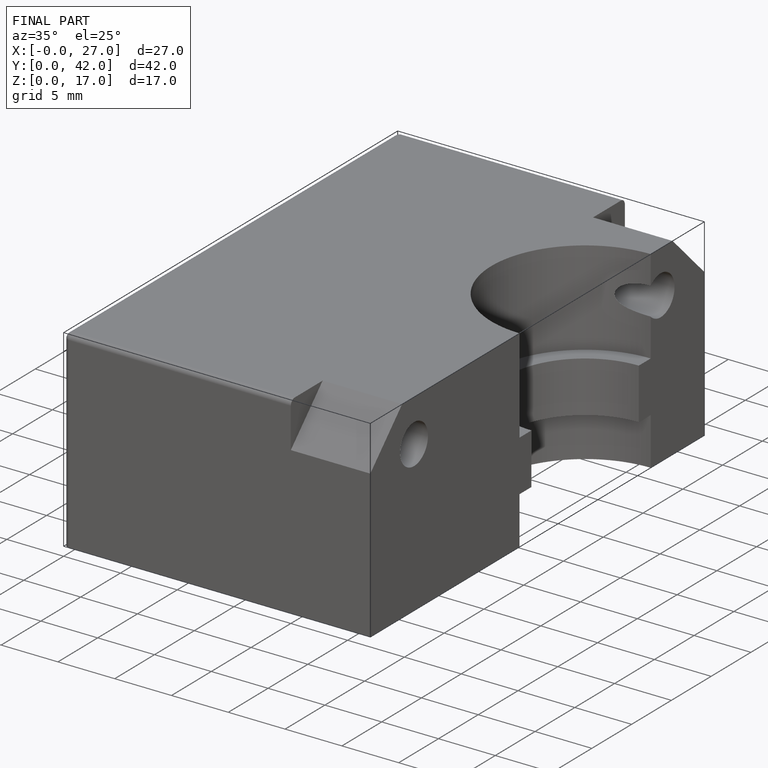
[diagram: finished part — iso view with bounding-box wireframe]
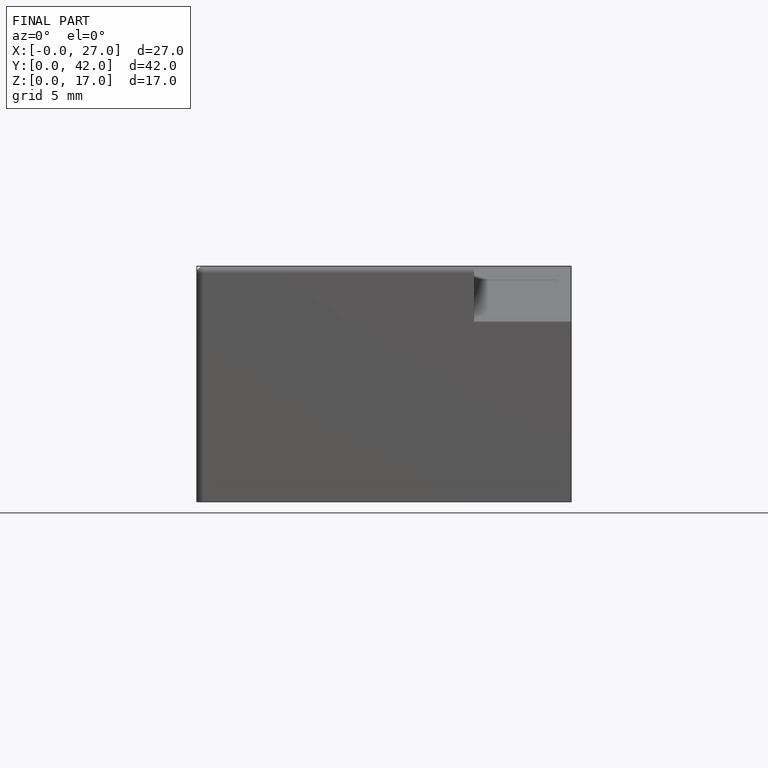
[diagram: finished part — front view with bounding-box wireframe]
